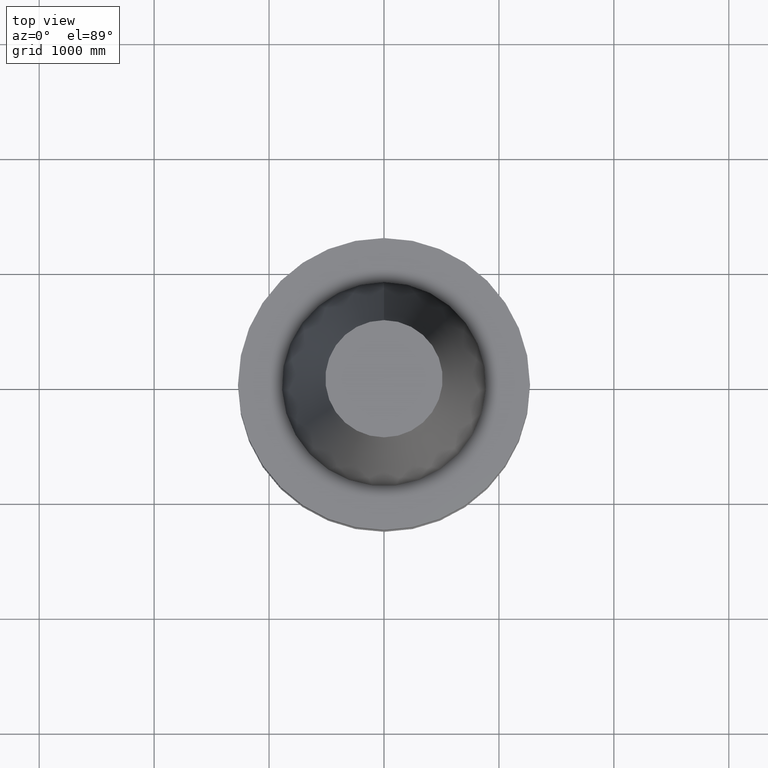
[diagram: clean part render]
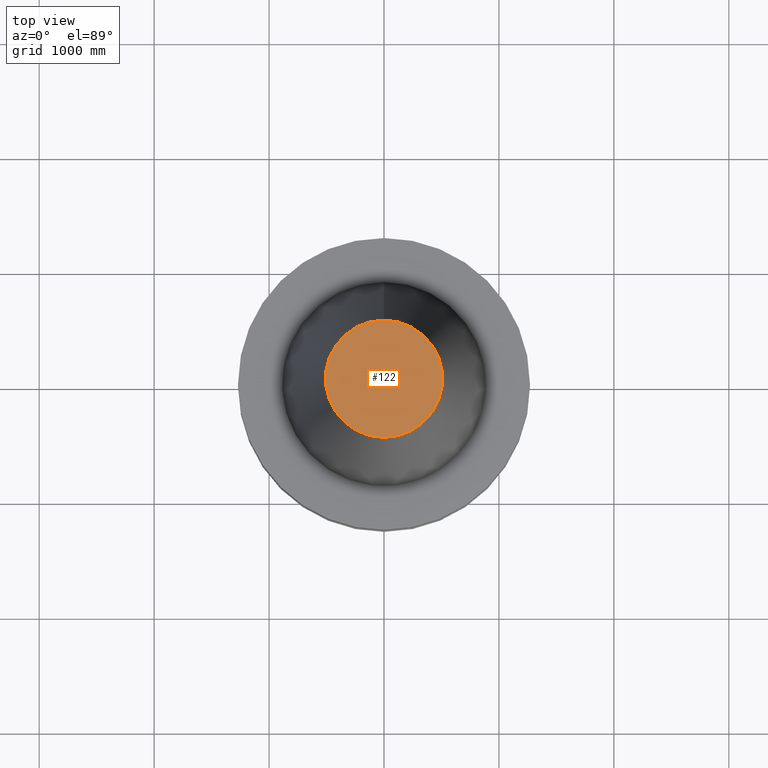
[diagram: same view with one face highlighted and labeled with its STEP entity id]
A machine part, top view. The second image highlights one B-rep face of the part: STEP entity #122.
In plain terms, the highlighted planar face has unit normal (-0, -0, 1).
Its self-contained STEP definition (entity closure, byte-faithful):
#99=EDGE_CURVE('Unnamed[1]',#239,#239,#240,.T.);
#122=ADVANCED_FACE('Unnamed[1]',(#273),#274,.T.);
#239=VERTEX_POINT('',#424);
#240=CIRCLE('',#425,20.0791666651884);
#273=FACE_OUTER_BOUND('',#466,.T.);
#274=PLANE('',#467);
#424=CARTESIAN_POINT('',(-6.23345220766003E-015,20.0791666651884,101.8));
#425=AXIS2_PLACEMENT_3D('',#624,#625,#626);
#466=EDGE_LOOP('',(#659));
#467=AXIS2_PLACEMENT_3D('',#660,#661,#662);
#624=CARTESIAN_POINT('',(-6.23345220766003E-015,1.30104902206953E-014,101.8));
#625=DIRECTION('',(-6.12323399573677E-017,1.40684069939014E-019,1.0));
#626=DIRECTION('',(-4.81853831597193E-033,1.0,-1.40684069939014E-019));
#659=ORIENTED_EDGE('',*,*,#99,.T.);
#660=CARTESIAN_POINT('',(-6.23345220766003E-015,10.0395833325942,101.8));
#661=DIRECTION('',(-6.12323399573677E-017,-1.22464679914735E-016,1.0));
#662=DIRECTION('',(-1.23259516440783E-032,1.0,1.22464679914735E-016));